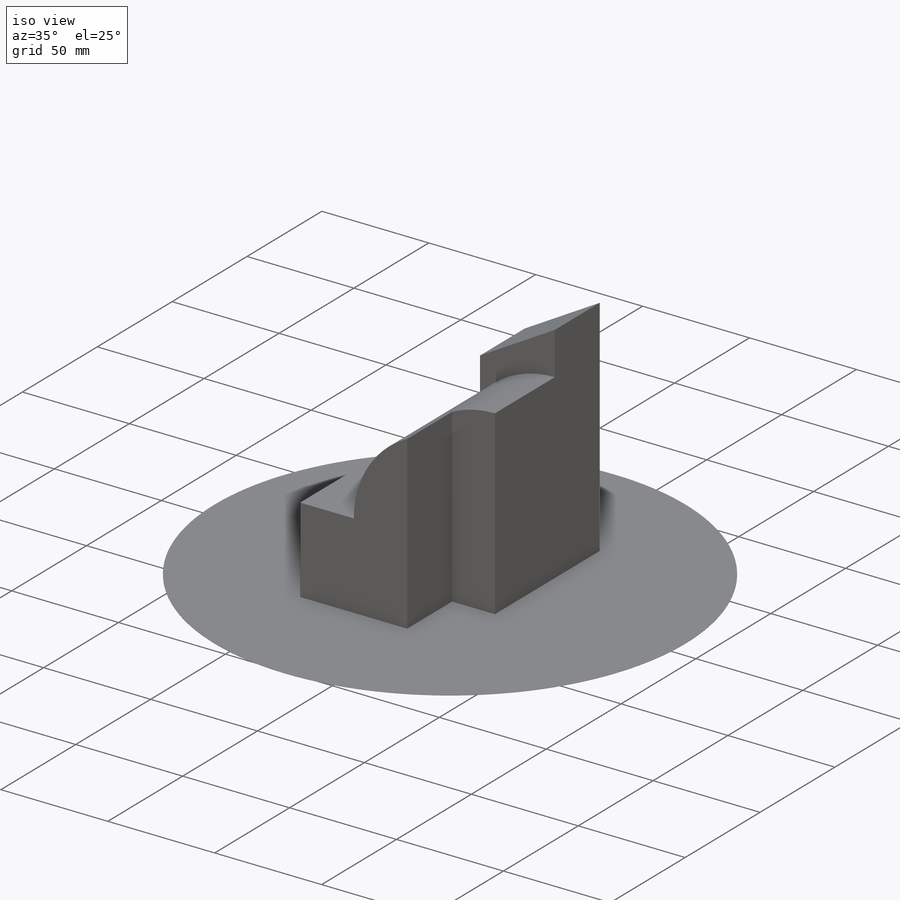
[diagram: iso view]
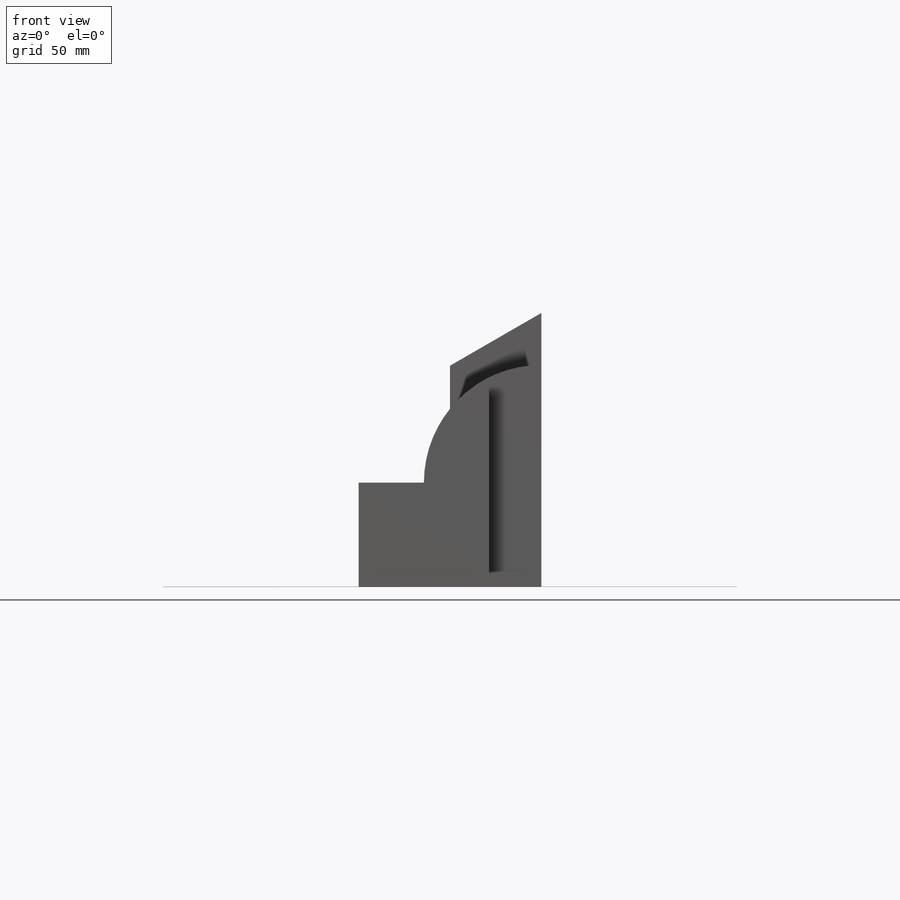
[diagram: front view]
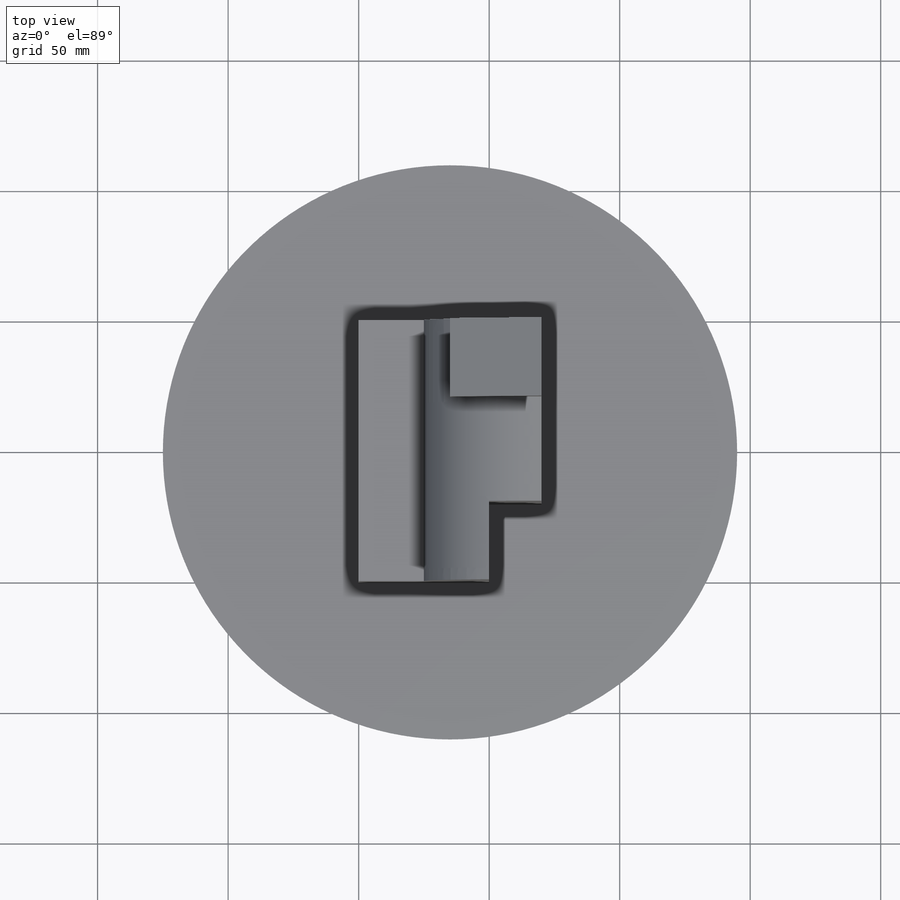
[diagram: top view]
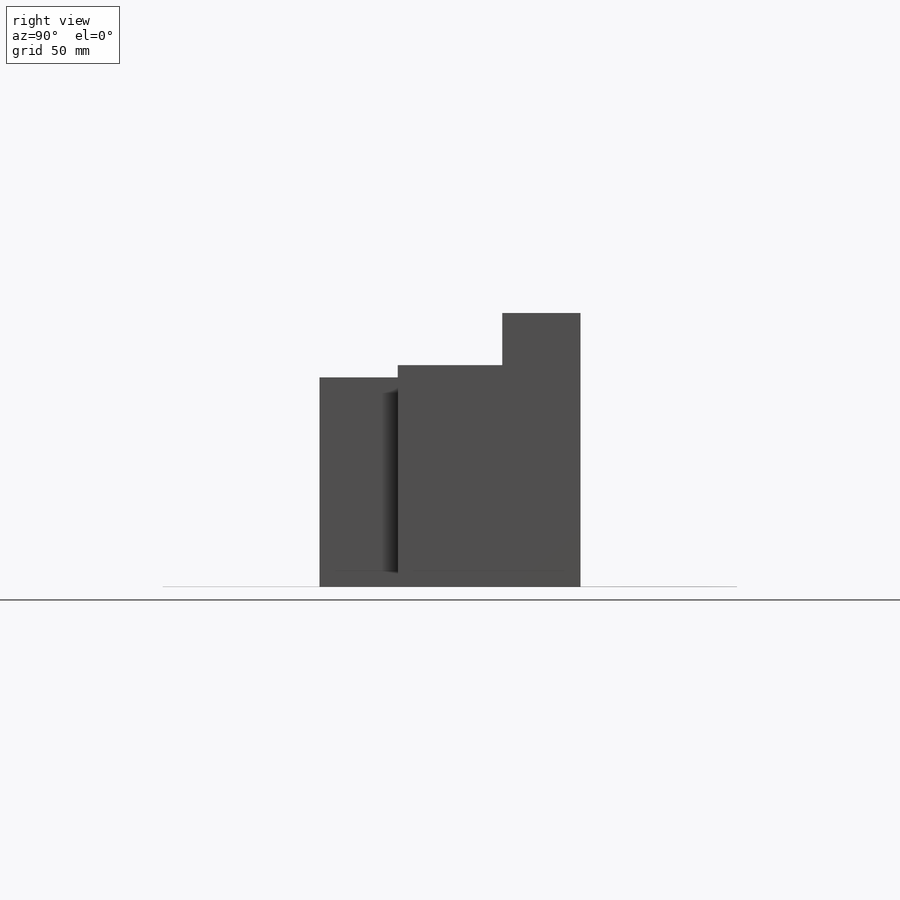
[diagram: right view]
SOLIDWORKS PART (.sldprt)
format: sldprt  version: not decoded by parser v0  size: 273,408 bytes
history: native  units: mm
features: sketch x5, extrude x3, cut_extrude x2, material x1 (+16 scaffold rows collapsed)
feature tree (27):
  scaffold x16  (default folders/planes/origin — collapsed)
  material  "Material <not specified>"
  sketch  "Sketch1"  dims[D1=45.0mm D2=40.0mm D3=40.0mm D4=70.0mm]
  extrude  "Extrude1"  Depth=100mm
  sketch  "Sketch2"  dims[D1=30.0mm D2=35.0mm]
  extrude  "Extrude2"  Depth=105mm
  sketch  "Sketch3"  dims[D1=20.0mm D2=30.0mm]
  cut_extrude  "Extrude3"  Depth=105mm
  sketch  "Sketch4"  dims[c1.D1=35.0mm c2.D1=30.0deg]
  cut_extrude  "Extrude4"  [1 undecoded]
  sketch  "Sketch5"  dims[D1=220.0mm]
  extrude  "Extrude5"  Depth=0.1mm
decode coverage: 9 of 10 modeling features carry decoded parameters
note: 1 parameter value undecoded
note: suppression state not decoded; provenance and decode notes live in map.json
